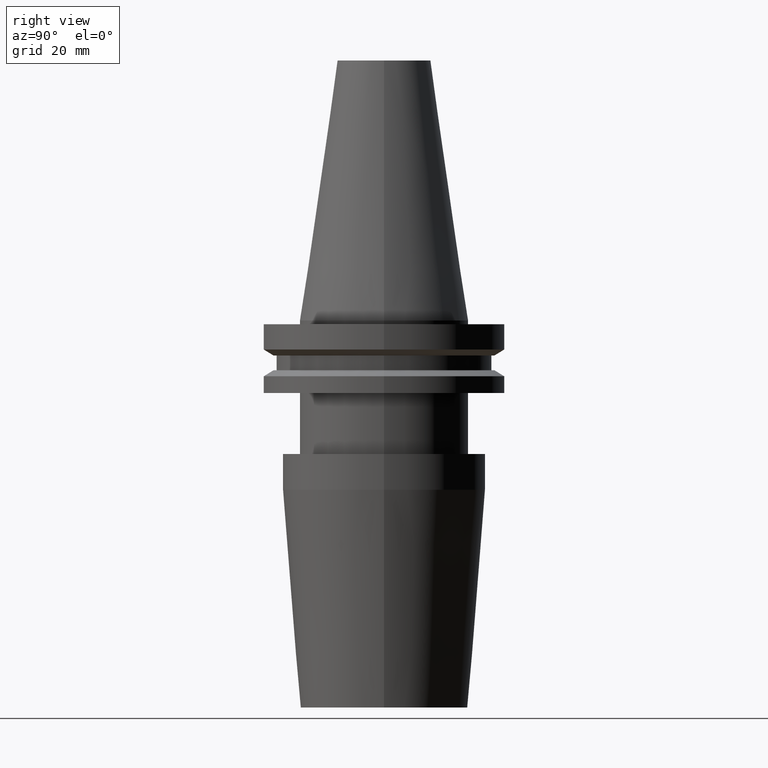
[diagram: clean part render]
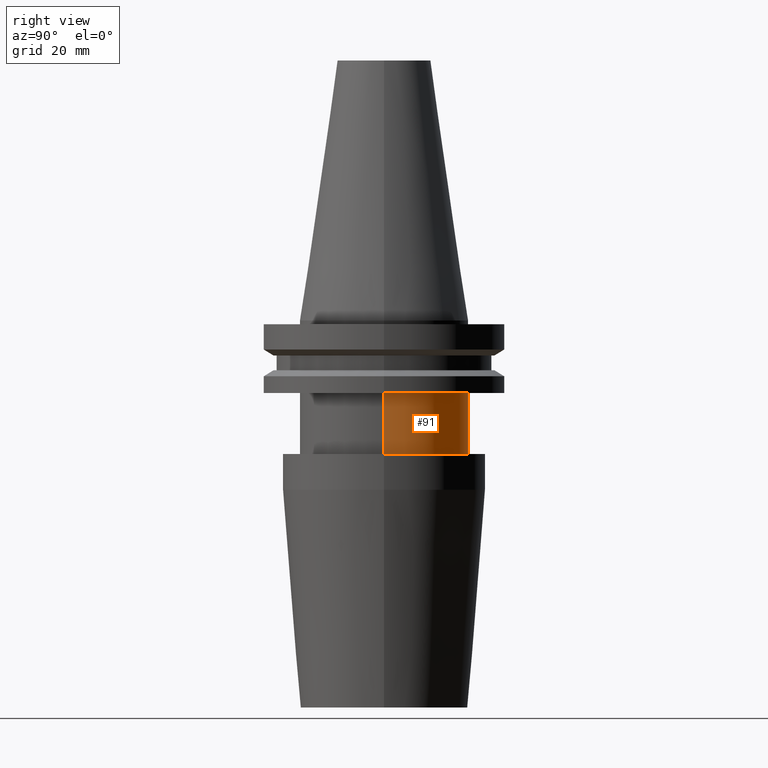
[diagram: same view with one face highlighted and labeled with its STEP entity id]
A machine part, right view. The second image highlights one B-rep face of the part: STEP entity #91.
In plain terms, the highlighted cylindrical surface (partial cylindrical patch) has radius 22.225 mm, axis along (-0, -0, 1).
Its self-contained STEP definition (entity closure, byte-faithful):
#3 = CIRCLE ( 'NONE', #535, 22.22499999999999787 ) ;
#5 = ORIENTED_EDGE ( 'NONE', *, *, #583, .F. ) ;
#31 = AXIS2_PLACEMENT_3D ( 'NONE', #808, #226, #425 ) ;
#41 = ORIENTED_EDGE ( 'NONE', *, *, #679, .T. ) ;
#45 = FACE_OUTER_BOUND ( 'NONE', #635, .T. ) ;
#52 = VERTEX_POINT ( 'NONE', #625 ) ;
#55 = CARTESIAN_POINT ( 'NONE',  ( -22.22499999999999787, 2.721777511104992454E-15, -35.04999999999999716 ) ) ;
#69 = CARTESIAN_POINT ( 'NONE',  ( -22.22500000000000142, 2.721777511104992849E-15, 68.25000000000000000 ) ) ;
#87 = DIRECTION ( 'NONE',  ( 1.000000000000000000, 0.000000000000000000, 0.000000000000000000 ) ) ;
#91 = ADVANCED_FACE ( 'NONE', ( #45 ), #562, .T. ) ;
#100 = DIRECTION ( 'NONE',  ( -0.000000000000000000, -0.000000000000000000, 1.000000000000000000 ) ) ;
#119 = VECTOR ( 'NONE', #338, 1000.000000000000000 ) ;
#194 = LINE ( 'NONE', #69, #381 ) ;
#219 = VERTEX_POINT ( 'NONE', #55 ) ;
#226 = DIRECTION ( 'NONE',  ( -0.000000000000000000, -0.000000000000000000, 1.000000000000000000 ) ) ;
#264 = AXIS2_PLACEMENT_3D ( 'NONE', #754, #100, #702 ) ;
#286 = CARTESIAN_POINT ( 'NONE',  ( 0.000000000000000000, 0.000000000000000000, -35.04999999999999716 ) ) ;
#325 = ORIENTED_EDGE ( 'NONE', *, *, #699, .F. ) ;
#338 = DIRECTION ( 'NONE',  ( -0.000000000000000000, -0.000000000000000000, 1.000000000000000000 ) ) ;
#362 = DIRECTION ( 'NONE',  ( -0.000000000000000000, -0.000000000000000000, 1.000000000000000000 ) ) ;
#378 = CIRCLE ( 'NONE', #31, 22.22500000000000142 ) ;
#381 = VECTOR ( 'NONE', #458, 1000.000000000000000 ) ;
#417 = ORIENTED_EDGE ( 'NONE', *, *, #814, .T. ) ;
#425 = DIRECTION ( 'NONE',  ( 1.000000000000000000, 0.000000000000000000, 0.000000000000000000 ) ) ;
#458 = DIRECTION ( 'NONE',  ( -0.000000000000000000, -0.000000000000000000, 1.000000000000000000 ) ) ;
#535 = AXIS2_PLACEMENT_3D ( 'NONE', #286, #362, #87 ) ;
#562 = CYLINDRICAL_SURFACE ( 'NONE', #264, 22.22500000000000142 ) ;
#583 = EDGE_CURVE ( 'NONE', #793, #52, #378, .T. ) ;
#594 = CARTESIAN_POINT ( 'NONE',  ( 22.22500000000000142, 0.000000000000000000, 68.25000000000000000 ) ) ;
#599 = CARTESIAN_POINT ( 'NONE',  ( 22.22499999999999787, 0.000000000000000000, -35.04999999999999716 ) ) ;
#625 = CARTESIAN_POINT ( 'NONE',  ( -22.22500000000000142, 2.721777511104992849E-15, -19.04999999999999716 ) ) ;
#635 = EDGE_LOOP ( 'NONE', ( #417, #41, #5, #325 ) ) ;
#679 = EDGE_CURVE ( 'NONE', #219, #52, #194, .T. ) ;
#699 = EDGE_CURVE ( 'NONE', #700, #793, #790, .T. ) ;
#700 = VERTEX_POINT ( 'NONE', #599 ) ;
#702 = DIRECTION ( 'NONE',  ( 1.000000000000000000, 0.000000000000000000, 0.000000000000000000 ) ) ;
#738 = CARTESIAN_POINT ( 'NONE',  ( 22.22500000000000142, 0.000000000000000000, -19.04999999999999716 ) ) ;
#754 = CARTESIAN_POINT ( 'NONE',  ( 0.000000000000000000, 0.000000000000000000, 68.25000000000000000 ) ) ;
#790 = LINE ( 'NONE', #594, #119 ) ;
#793 = VERTEX_POINT ( 'NONE', #738 ) ;
#808 = CARTESIAN_POINT ( 'NONE',  ( 0.000000000000000000, 0.000000000000000000, -19.04999999999999716 ) ) ;
#814 = EDGE_CURVE ( 'NONE', #700, #219, #3, .T. ) ;